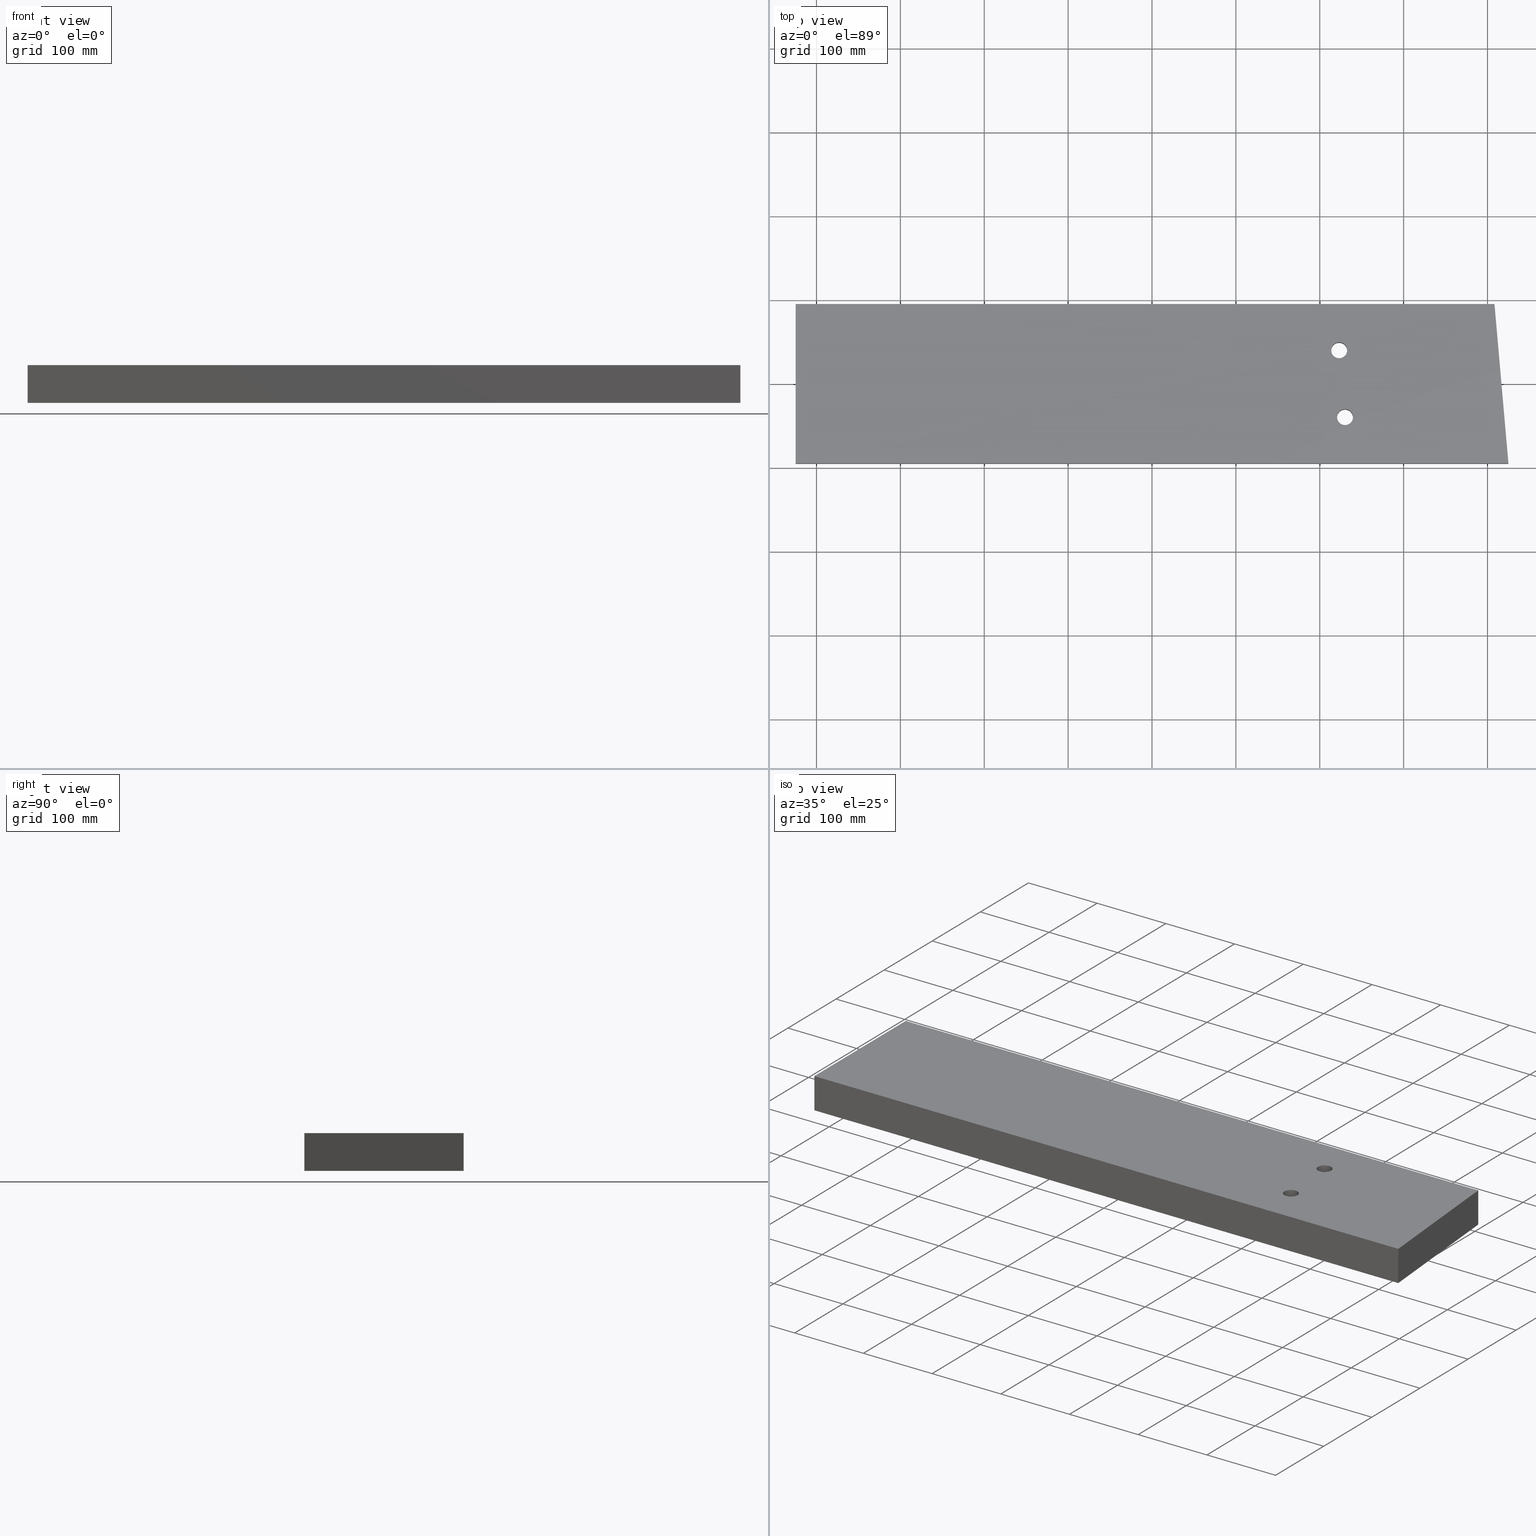
[diagram: canonical four-view strip — front | top / right | iso, engineering-drawing reading convention]
A machine part, canonical four-view strip (front | top / right | iso — engineering-drawing reading convention). The complete STEP part file that produces these views, byte-faithful:
ISO-10303-21;
HEADER;
FILE_DESCRIPTION (( 'STEP AP203' ),
    '1' );
FILE_NAME ('3982-58_REV_.step',
    '2026-01-19T05:56:40',
    ( '' ),
    ( '' ),
    'SwSTEP 2.0',
    'SolidWorks 2025',
    '' );
FILE_SCHEMA (( 'CONFIG_CONTROL_DESIGN' ));
ENDSEC;

DATA;
#1 = CARTESIAN_POINT ( 'NONE',  ( 408.3771539300757922, 94.99999999999997158, -22.50000000000037659 ) ) ;
#2 = AXIS2_PLACEMENT_3D ( 'NONE', #55, #242, #119 ) ;
#3 = APPROVAL_STATUS ( 'not_yet_approved' ) ;
#4 = DIRECTION ( 'NONE',  ( -1.000000000000000000, -5.843279076974508523E-16, 2.342651628260497432E-30 ) ) ;
#5 = ORIENTED_EDGE ( 'NONE', *, *, #66, .T. ) ;
#6 = PERSON_AND_ORGANIZATION ( #198, #112 ) ;
#7 = CARTESIAN_POINT ( 'NONE',  ( 239.6748066749439658, -39.84778792366971345, 22.49999999999999645 ) ) ;
#8 = AXIS2_PLACEMENT_3D ( 'NONE', #125, #254, #250 ) ;
#9 = ORIENTED_EDGE ( 'NONE', *, *, #372, .T. ) ;
#10 = APPROVAL_PERSON_ORGANIZATION ( #179, #293, #116 ) ;
#11 = VECTOR ( 'NONE', #289, 1000.000000000000000 ) ;
#12 = APPROVAL_STATUS ( 'not_yet_approved' ) ;
#13 = DIRECTION ( 'NONE',  ( -0.000000000000000000, -0.000000000000000000, 1.000000000000000000 ) ) ;
#14 = CARTESIAN_POINT ( 'NONE',  ( -425.0000000000000568, 94.99999999999998579, 22.49999999999963052 ) ) ;
#15 = ORIENTED_EDGE ( 'NONE', *, *, #105, .F. ) ;
#16 = DIRECTION ( 'NONE',  ( -5.843279076974508523E-16, 1.000000000000000000, -3.816391647148975608E-15 ) ) ;
#17 = CIRCLE ( 'NONE', #59, 9.499999999999980460 ) ;
#18 = EDGE_LOOP ( 'NONE', ( #127, #273, #123, #103 ) ) ;
#19 = CARTESIAN_POINT ( 'NONE',  ( -424.9999999999999432, -95.00000000000019895, -22.49999999999965539 ) ) ;
#20 =( LENGTH_UNIT ( ) NAMED_UNIT ( * ) SI_UNIT ( .MILLI., .METRE. ) );
#21 = APPLICATION_CONTEXT ( 'configuration controlled 3d designs of mechanical parts and assemblies' ) ;
#22 = DIRECTION ( 'NONE',  ( -0.000000000000000000, -4.009138700035287069E-15, -1.000000000000000000 ) ) ;
#23 = CIRCLE ( 'NONE', #326, 9.499999999999980460 ) ;
#24 = CARTESIAN_POINT ( 'NONE',  ( -424.9999999999999432, -95.00000000000019895, -22.49999999999965539 ) ) ;
#25 = PERSON_AND_ORGANIZATION ( #198, #112 ) ;
#26 =( NAMED_UNIT ( * ) PLANE_ANGLE_UNIT ( ) SI_UNIT ( $, .RADIAN. ) );
#27 = LINE ( 'NONE', #299, #275 ) ;
#28 = AXIS2_PLACEMENT_3D ( 'NONE', #332, #4, #205 ) ;
#29 = DIRECTION ( 'NONE',  ( -1.168432953743421931E-30, 3.816391647148975608E-15, 1.000000000000000000 ) ) ;
#30 = CC_DESIGN_PERSON_AND_ORGANIZATION_ASSIGNMENT ( #276, #65, ( #279 ) ) ;
#31 = ORIENTED_EDGE ( 'NONE', *, *, #356, .F. ) ;
#32 = ORIENTED_EDGE ( 'NONE', *, *, #372, .F. ) ;
#33 = APPROVAL_STATUS ( 'not_yet_approved' ) ;
#34 = CARTESIAN_POINT ( 'NONE',  ( 220.6748066749439943, -39.84778792366971345, -22.49999999999986500 ) ) ;
#35 = EDGE_CURVE ( 'NONE', #244, #178, #312, .T. ) ;
#36 = EDGE_LOOP ( 'NONE', ( #5, #189 ) ) ;
#37 = CALENDAR_DATE ( 2026, 19, 1 ) ;
#38 = AXIS2_PLACEMENT_3D ( 'NONE', #215, #85, #354 ) ;
#39 = CARTESIAN_POINT ( 'NONE',  ( 230.1748066749439658, -39.84778792366971345, -22.49999999999986500 ) ) ;
#40 = EDGE_LOOP ( 'NONE', ( #379, #246, #67, #148 ) ) ;
#41 = EDGE_CURVE ( 'NONE', #371, #152, #134, .T. ) ;
#42 = VERTEX_POINT ( 'NONE', #75 ) ;
#43 = DATE_TIME_ROLE ( 'creation_date' ) ;
#44 = CC_DESIGN_DATE_AND_TIME_ASSIGNMENT ( #82, #269, ( #174 ) ) ;
#45 = CARTESIAN_POINT ( 'NONE',  ( 223.2023472551318264, 39.84778792366994793, -22.50000000000017053 ) ) ;
#46 = AXIS2_PLACEMENT_3D ( 'NONE', #211, #359, #382 ) ;
#47 = DIRECTION ( 'NONE',  ( 0.000000000000000000, 4.009138700035287069E-15, 1.000000000000000000 ) ) ;
#48 = PLANE ( 'NONE',  #280 ) ;
#49 = EDGE_LOOP ( 'NONE', ( #308, #330, #316, #162 ) ) ;
#50 = DIRECTION ( 'NONE',  ( 0.000000000000000000, 1.000000000000000000, -3.816391647148975608E-15 ) ) ;
#51 = DIRECTION ( 'NONE',  ( -1.168432953743421931E-30, 3.816391647148975608E-15, 1.000000000000000000 ) ) ;
#52 = CARTESIAN_POINT ( 'NONE',  ( -424.9999999999999432, -95.00000000000019895, -22.49999999999965539 ) ) ;
#53 = PLANE ( 'NONE',  #28 ) ;
#54 = CARTESIAN_POINT ( 'NONE',  ( -425.0000000000000568, 94.99999999999980105, -22.50000000000038014 ) ) ;
#55 = CARTESIAN_POINT ( 'NONE',  ( 230.1748066749439658, -39.84778792366971345, 22.49999999999999645 ) ) ;
#56 = CARTESIAN_POINT ( 'NONE',  ( -424.9999999999999432, -95.00000000000001421, 22.50000000000035527 ) ) ;
#57 = DATE_AND_TIME ( #361, #166 ) ;
#58 = DIRECTION ( 'NONE',  ( 0.000000000000000000, -4.009138700035287069E-15, -1.000000000000000000 ) ) ;
#59 = AXIS2_PLACEMENT_3D ( 'NONE', #39, #154, #278 ) ;
#60 = CC_DESIGN_APPROVAL ( #293, ( #174 ) ) ;
#61 = ORIENTED_EDGE ( 'NONE', *, *, #180, .F. ) ;
#62 = EDGE_CURVE ( 'NONE', #251, #244, #165, .T. ) ;
#63 = FACE_OUTER_BOUND ( 'NONE', #40, .T. ) ;
#64 = ORIENTED_EDGE ( 'NONE', *, *, #218, .T. ) ;
#65 = PERSON_AND_ORGANIZATION_ROLE ( 'creator' ) ;
#66 = EDGE_CURVE ( 'NONE', #314, #371, #320, .T. ) ;
#67 = ORIENTED_EDGE ( 'NONE', *, *, #135, .T. ) ;
#68 = FACE_OUTER_BOUND ( 'NONE', #90, .T. ) ;
#69 = EDGE_LOOP ( 'NONE', ( #98, #340, #194, #213 ) ) ;
#70 = EDGE_CURVE ( 'NONE', #219, #366, #196, .T. ) ;
#71 = CARTESIAN_POINT ( 'NONE',  ( 408.3771539300757922, 94.99999999999997158, -22.50000000000037659 ) ) ;
#72 = VERTEX_POINT ( 'NONE', #261 ) ;
#73 = DIRECTION ( 'NONE',  ( 1.000000000000000000, 0.000000000000000000, 0.000000000000000000 ) ) ;
#74 = APPLICATION_CONTEXT ( 'configuration controlled 3d designs of mechanical parts and assemblies' ) ;
#75 = CARTESIAN_POINT ( 'NONE',  ( 425.0000000000000568, -94.99999999999974420, 22.50000000000035527 ) ) ;
#76 = DIRECTION ( 'NONE',  ( 1.000000000000000000, 0.000000000000000000, 0.000000000000000000 ) ) ;
#77 = ADVANCED_FACE ( 'NONE', ( #63 ), #53, .T. ) ;
#78 = AXIS2_PLACEMENT_3D ( 'NONE', #19, #346, #343 ) ;
#79 = CARTESIAN_POINT ( 'NONE',  ( 408.3771539300757922, 94.99999999999997158, -22.50000000000037659 ) ) ;
#80 = DIRECTION ( 'NONE',  ( 0.000000000000000000, -1.000000000000000000, 3.652049423109075124E-15 ) ) ;
#81 = LINE ( 'NONE', #234, #378 ) ;
#82 = DATE_AND_TIME ( #358, #204 ) ;
#83 = CC_DESIGN_PERSON_AND_ORGANIZATION_ASSIGNMENT ( #297, #327, ( #241 ) ) ;
#84 = PERSON_AND_ORGANIZATION_ROLE ( 'creator' ) ;
#85 = DIRECTION ( 'NONE',  ( -0.000000000000000000, -0.000000000000000000, 1.000000000000000000 ) ) ;
#86 = CYLINDRICAL_SURFACE ( 'NONE', #46, 9.499999999999980460 ) ;
#87 = EDGE_CURVE ( 'NONE', #244, #296, #177, .T. ) ;
#88 = ORIENTED_EDGE ( 'NONE', *, *, #87, .F. ) ;
#89 = DIRECTION ( 'NONE',  ( 3.061616997868382648E-16, -1.000000000000000000, 4.009138700035287069E-15 ) ) ;
#90 = EDGE_LOOP ( 'NONE', ( #221, #274, #364, #64 ) ) ;
#91 = PRODUCT_RELATED_PRODUCT_CATEGORY ( 'detail', '', ( #226 ) ) ;
#92 = COORDINATED_UNIVERSAL_TIME_OFFSET ( 10, 0, .AHEAD. ) ;
#93 = CALENDAR_DATE ( 2026, 19, 1 ) ;
#94 = VERTEX_POINT ( 'NONE', #34 ) ;
#95 = VECTOR ( 'NONE', #349, 1000.000000000000000 ) ;
#96 = ORIENTED_EDGE ( 'NONE', *, *, #172, .F. ) ;
#97 = DIRECTION ( 'NONE',  ( -0.000000000000000000, -0.000000000000000000, 1.000000000000000000 ) ) ;
#98 = ORIENTED_EDGE ( 'NONE', *, *, #176, .F. ) ;
#99 = EDGE_CURVE ( 'NONE', #72, #334, #184, .T. ) ;
#100 = CARTESIAN_POINT ( 'NONE',  ( 220.6748066749439943, -39.84778792366971345, 22.49999999999999645 ) ) ;
#101 = ORIENTED_EDGE ( 'NONE', *, *, #263, .F. ) ;
#102 = DIRECTION ( 'NONE',  ( -0.9961946980917461003, -0.08715574274765151841, 0.000000000000000000 ) ) ;
#103 = ORIENTED_EDGE ( 'NONE', *, *, #192, .F. ) ;
#104 = CARTESIAN_POINT ( 'NONE',  ( 223.2023472551318264, 39.84778792366994793, 22.49999999999999645 ) ) ;
#105 = EDGE_CURVE ( 'NONE', #178, #120, #147, .T. ) ;
#106 = DIRECTION ( 'NONE',  ( -0.000000000000000000, -0.000000000000000000, 1.000000000000000000 ) ) ;
#107 = LINE ( 'NONE', #284, #11 ) ;
#108 = EDGE_CURVE ( 'NONE', #94, #132, #110, .T. ) ;
#109 = FACE_OUTER_BOUND ( 'NONE', #224, .T. ) ;
#110 = CIRCLE ( 'NONE', #305, 9.499999999999980460 ) ;
#111 = PLANE ( 'NONE',  #151 ) ;
#112 = ORGANIZATION ( 'UNSPECIFIED', 'UNSPECIFIED', '' ) ;
#113 = SECURITY_CLASSIFICATION_LEVEL ( 'unclassified' ) ;
#114 = ADVANCED_FACE ( 'NONE', ( #268 ), #362, .F. ) ;
#115 = CARTESIAN_POINT ( 'NONE',  ( 223.2023472551318264, 39.84778792366994793, 22.49999999999999645 ) ) ;
#116 = APPROVAL_ROLE ( '' ) ;
#117 = DIRECTION ( 'NONE',  ( 1.000000000000000000, 3.061616997868382648E-16, -0.000000000000000000 ) ) ;
#118 = ORIENTED_EDGE ( 'NONE', *, *, #325, .F. ) ;
#119 = DIRECTION ( 'NONE',  ( 1.000000000000000000, 0.000000000000000000, 0.000000000000000000 ) ) ;
#120 = VERTEX_POINT ( 'NONE', #321 ) ;
#121 = VECTOR ( 'NONE', #22, 1000.000000000000000 ) ;
#122 = CIRCLE ( 'NONE', #8, 9.499999999999980460 ) ;
#123 = ORIENTED_EDGE ( 'NONE', *, *, #223, .T. ) ;
#124 = DATE_AND_TIME ( #93, #225 ) ;
#125 = CARTESIAN_POINT ( 'NONE',  ( 223.2023472551318264, 39.84778792366994793, 22.49999999999999645 ) ) ;
#126 = CARTESIAN_POINT ( 'NONE',  ( -424.9999999999999432, -95.00000000000001421, 22.50000000000035527 ) ) ;
#127 = ORIENTED_EDGE ( 'NONE', *, *, #108, .F. ) ;
#128 = AXIS2_PLACEMENT_3D ( 'NONE', #146, #351, #295 ) ;
#129 = ORIENTED_EDGE ( 'NONE', *, *, #87, .T. ) ;
#130 = ADVANCED_FACE ( 'NONE', ( #170 ), #290, .F. ) ;
#131 = CARTESIAN_POINT ( 'NONE',  ( 232.7023472551317980, 39.84778792366994793, 22.49999999999999645 ) ) ;
#132 = VERTEX_POINT ( 'NONE', #324 ) ;
#133 =( NAMED_UNIT ( * ) SI_UNIT ( $, .STERADIAN. ) SOLID_ANGLE_UNIT ( ) );
#134 = LINE ( 'NONE', #310, #95 ) ;
#135 = EDGE_CURVE ( 'NONE', #120, #251, #27, .T. ) ;
#136 = CARTESIAN_POINT ( 'NONE',  ( 232.7023472551317980, 39.84778792366994793, -22.50000000000017053 ) ) ;
#137 = APPROVAL ( #12, 'UNSPECIFIED' ) ;
#138 = FACE_OUTER_BOUND ( 'NONE', #191, .T. ) ;
#139 = PRODUCT_DEFINITION_SHAPE ( 'NONE', 'NONE',  #279 ) ;
#140 = DIRECTION ( 'NONE',  ( 0.000000000000000000, 4.009138700035287069E-15, 1.000000000000000000 ) ) ;
#141 = ADVANCED_FACE ( 'NONE', ( #245 ), #86, .F. ) ;
#142 = APPLICATION_PROTOCOL_DEFINITION ( 'international standard', 'config_control_design', 1994, #21 ) ;
#143 = DIRECTION ( 'NONE',  ( 1.000000000000000000, 3.061616997868382648E-16, -0.000000000000000000 ) ) ;
#144 = DESIGN_CONTEXT ( 'detailed design', #74, 'design' ) ;
#145 = VECTOR ( 'NONE', #161, 1000.000000000000000 ) ;
#146 = CARTESIAN_POINT ( 'NONE',  ( 230.1748066749439658, -39.84778792366971345, 22.49999999999999645 ) ) ;
#147 = LINE ( 'NONE', #272, #337 ) ;
#148 = ORIENTED_EDGE ( 'NONE', *, *, #62, .T. ) ;
#149 = ORIENTED_EDGE ( 'NONE', *, *, #298, .F. ) ;
#150 = DATE_AND_TIME ( #37, #322 ) ;
#151 = AXIS2_PLACEMENT_3D ( 'NONE', #52, #377, #228 ) ;
#152 = VERTEX_POINT ( 'NONE', #365 ) ;
#153 = CALENDAR_DATE ( 2026, 19, 1 ) ;
#154 = DIRECTION ( 'NONE',  ( -1.168432953743421931E-30, 3.816391647148975608E-15, 1.000000000000000000 ) ) ;
#155 = CARTESIAN_POINT ( 'NONE',  ( -425.0000000000000568, 94.99999999999980105, -22.50000000000038014 ) ) ;
#156 = PERSON_AND_ORGANIZATION ( #198, #112 ) ;
#157 = CLOSED_SHELL ( 'NONE', ( #114, #130, #163, #288, #257, #347, #77, #267, #141, #252 ) ) ;
#158 = ORIENTED_EDGE ( 'NONE', *, *, #35, .F. ) ;
#159 = LINE ( 'NONE', #131, #266 ) ;
#160 = EDGE_LOOP ( 'NONE', ( #197, #256, #118, #15 ) ) ;
#161 = DIRECTION ( 'NONE',  ( 1.000000000000000000, 3.061616997868382648E-16, -0.000000000000000000 ) ) ;
#162 = ORIENTED_EDGE ( 'NONE', *, *, #70, .T. ) ;
#163 = ADVANCED_FACE ( 'NONE', ( #109 ), #182, .F. ) ;
#164 = LINE ( 'NONE', #199, #281 ) ;
#165 = LINE ( 'NONE', #318, #173 ) ;
#166 = LOCAL_TIME ( 16, 56, 40.00000000000000000, #329 ) ;
#167 =( GEOMETRIC_REPRESENTATION_CONTEXT ( 3 ) GLOBAL_UNCERTAINTY_ASSIGNED_CONTEXT ( ( #212 ) ) GLOBAL_UNIT_ASSIGNED_CONTEXT ( ( #20, #26, #133 ) ) REPRESENTATION_CONTEXT ( 'NONE', 'WORKASPACE' ) );
#168 = PLANE ( 'NONE',  #78 ) ;
#169 = APPROVAL_PERSON_ORGANIZATION ( #156, #137, #311 ) ;
#170 = FACE_OUTER_BOUND ( 'NONE', #18, .T. ) ;
#171 = LINE ( 'NONE', #71, #258 ) ;
#172 = EDGE_CURVE ( 'NONE', #152, #259, #208, .T. ) ;
#173 = VECTOR ( 'NONE', #16, 1000.000000000000000 ) ;
#174 = SECURITY_CLASSIFICATION ( '', '', #113 ) ;
#175 = CARTESIAN_POINT ( 'NONE',  ( -425.0000000000000568, 94.99999999999980105, -22.50000000000038014 ) ) ;
#176 = EDGE_CURVE ( 'NONE', #371, #314, #331, .T. ) ;
#177 = LINE ( 'NONE', #264, #214 ) ;
#178 = VERTEX_POINT ( 'NONE', #175 ) ;
#179 = PERSON_AND_ORGANIZATION ( #198, #112 ) ;
#180 = EDGE_CURVE ( 'NONE', #251, #42, #294, .T. ) ;
#181 = AXIS2_PLACEMENT_3D ( 'NONE', #235, #89, #58 ) ;
#182 = PLANE ( 'NONE',  #181 ) ;
#183 = DATE_AND_TIME ( #153, #270 ) ;
#184 = LINE ( 'NONE', #1, #341 ) ;
#185 = ORIENTED_EDGE ( 'NONE', *, *, #223, .F. ) ;
#186 = APPROVAL_ROLE ( '' ) ;
#187 = DIRECTION ( 'NONE',  ( 0.000000000000000000, 0.000000000000000000, 1.000000000000000000 ) ) ;
#188 = AXIS2_PLACEMENT_3D ( 'NONE', #104, #232, #73 ) ;
#189 = ORIENTED_EDGE ( 'NONE', *, *, #176, .T. ) ;
#190 = MECHANICAL_CONTEXT ( 'NONE', #21, 'mechanical' ) ;
#191 = EDGE_LOOP ( 'NONE', ( #9, #61, #339, #271 ) ) ;
#192 = EDGE_CURVE ( 'NONE', #132, #219, #328, .T. ) ;
#193 = APPLICATION_PROTOCOL_DEFINITION ( 'international standard', 'config_control_design', 1994, #74 ) ;
#194 = ORIENTED_EDGE ( 'NONE', *, *, #172, .T. ) ;
#195 = CC_DESIGN_PERSON_AND_ORGANIZATION_ASSIGNMENT ( #25, #84, ( #241 ) ) ;
#196 = CIRCLE ( 'NONE', #128, 9.499999999999980460 ) ;
#197 = ORIENTED_EDGE ( 'NONE', *, *, #298, .T. ) ;
#198 = PERSON ( 'UNSPECIFIED', 'UNSPECIFIED', 'UNSPECIFIED', ('UNSPECIFIED'), ('UNSPECIFIED'), ('UNSPECIFIED') ) ;
#199 = CARTESIAN_POINT ( 'NONE',  ( 425.0000000000000568, -94.99999999999992895, -22.49999999999965539 ) ) ;
#200 = FACE_BOUND ( 'NONE', #369, .T. ) ;
#201 = CARTESIAN_POINT ( 'NONE',  ( 213.7023472551318548, 39.84778792366994793, -22.50000000000017053 ) ) ;
#202 = DIRECTION ( 'NONE',  ( 0.08715574274765151841, -0.9961946980917461003, 0.000000000000000000 ) ) ;
#203 = AXIS2_PLACEMENT_3D ( 'NONE', #319, #383, #50 ) ;
#204 = LOCAL_TIME ( 16, 56, 40.00000000000000000, #207 ) ;
#205 = DIRECTION ( 'NONE',  ( 5.843279076974508523E-16, -1.000000000000000000, 0.000000000000000000 ) ) ;
#206 = FACE_BOUND ( 'NONE', #36, .T. ) ;
#207 = COORDINATED_UNIVERSAL_TIME_OFFSET ( 10, 0, .AHEAD. ) ;
#208 = CIRCLE ( 'NONE', #38, 9.499999999999980460 ) ;
#209 = CARTESIAN_POINT ( 'NONE',  ( 223.2023472551318264, 39.84778792366994793, -22.50000000000017053 ) ) ;
#210 = ORIENTED_EDGE ( 'NONE', *, *, #218, .F. ) ;
#211 = CARTESIAN_POINT ( 'NONE',  ( 230.1748066749439658, -39.84778792366971345, 22.49999999999999645 ) ) ;
#212 = UNCERTAINTY_MEASURE_WITH_UNIT (LENGTH_MEASURE( 1.000000000000000082E-05 ), #20, 'distance_accuracy_value', 'NONE');
#213 = ORIENTED_EDGE ( 'NONE', *, *, #384, .F. ) ;
#214 = VECTOR ( 'NONE', #117, 1000.000000000000000 ) ;
#215 = CARTESIAN_POINT ( 'NONE',  ( 223.2023472551318264, 39.84778792366994793, 22.49999999999999645 ) ) ;
#216 = CC_DESIGN_SECURITY_CLASSIFICATION ( #174, ( #241 ) ) ;
#217 = APPROVAL_DATE_TIME ( #124, #137 ) ;
#218 = EDGE_CURVE ( 'NONE', #259, #152, #122, .T. ) ;
#219 = VERTEX_POINT ( 'NONE', #220 ) ;
#220 = CARTESIAN_POINT ( 'NONE',  ( 239.6748066749439658, -39.84778792366971345, 22.49999999999999645 ) ) ;
#221 = ORIENTED_EDGE ( 'NONE', *, *, #41, .F. ) ;
#222 = MANIFOLD_SOLID_BREP ( 'M16 Clearance Hole1', #157 ) ;
#223 = EDGE_CURVE ( 'NONE', #366, #219, #23, .T. ) ;
#224 = EDGE_LOOP ( 'NONE', ( #129, #101, #149, #158 ) ) ;
#225 = LOCAL_TIME ( 16, 56, 40.00000000000000000, #92 ) ;
#226 = PRODUCT ( '3982-58_REV_', '3982-58_REV_', '', ( #190 ) ) ;
#227 = APPROVAL ( #33, 'UNSPECIFIED' ) ;
#228 = DIRECTION ( 'NONE',  ( 0.000000000000000000, 4.009138700035287069E-15, 1.000000000000000000 ) ) ;
#229 = ORIENTED_EDGE ( 'NONE', *, *, #263, .T. ) ;
#230 = CC_DESIGN_PERSON_AND_ORGANIZATION_ASSIGNMENT ( #239, #238, ( #174 ) ) ;
#231 = DIRECTION ( 'NONE',  ( 0.08715574274765151841, -0.9961946980917461003, 0.000000000000000000 ) ) ;
#232 = DIRECTION ( 'NONE',  ( -0.000000000000000000, -0.000000000000000000, 1.000000000000000000 ) ) ;
#233 = CARTESIAN_POINT ( 'NONE',  ( 230.1748066749439658, -39.84778792366971345, -22.49999999999986500 ) ) ;
#234 = CARTESIAN_POINT ( 'NONE',  ( 220.6748066749439943, -39.84778792366971345, 22.49999999999999645 ) ) ;
#235 = CARTESIAN_POINT ( 'NONE',  ( -425.0000000000000568, 94.99999999999980105, -22.50000000000038014 ) ) ;
#236 = LINE ( 'NONE', #54, #240 ) ;
#237 = EDGE_CURVE ( 'NONE', #132, #94, #17, .T. ) ;
#238 = PERSON_AND_ORGANIZATION_ROLE ( 'classification_officer' ) ;
#239 = PERSON_AND_ORGANIZATION ( #198, #112 ) ;
#240 = VECTOR ( 'NONE', #323, 1000.000000000000000 ) ;
#241 = PRODUCT_DEFINITION_FORMATION_WITH_SPECIFIED_SOURCE ( 'ANY', '', #226, .NOT_KNOWN. ) ;
#242 = DIRECTION ( 'NONE',  ( -0.000000000000000000, -0.000000000000000000, 1.000000000000000000 ) ) ;
#243 = DIRECTION ( 'NONE',  ( -1.168432953743421931E-30, 3.816391647148975608E-15, 1.000000000000000000 ) ) ;
#244 = VERTEX_POINT ( 'NONE', #14 ) ;
#245 = FACE_OUTER_BOUND ( 'NONE', #49, .T. ) ;
#246 = ORIENTED_EDGE ( 'NONE', *, *, #105, .T. ) ;
#247 = AXIS2_PLACEMENT_3D ( 'NONE', #209, #29, #80 ) ;
#248 = AXIS2_PLACEMENT_3D ( 'NONE', #367, #187, #338 ) ;
#249 = PERSON_AND_ORGANIZATION ( #198, #112 ) ;
#250 = DIRECTION ( 'NONE',  ( 1.000000000000000000, 0.000000000000000000, 0.000000000000000000 ) ) ;
#251 = VERTEX_POINT ( 'NONE', #126 ) ;
#252 = ADVANCED_FACE ( 'NONE', ( #68 ), #370, .F. ) ;
#253 = ORIENTED_EDGE ( 'NONE', *, *, #237, .T. ) ;
#254 = DIRECTION ( 'NONE',  ( -0.000000000000000000, -0.000000000000000000, 1.000000000000000000 ) ) ;
#255 = CARTESIAN_POINT ( 'NONE',  ( 425.0000000000000568, -94.99999999999974420, -22.50000000000037659 ) ) ;
#256 = ORIENTED_EDGE ( 'NONE', *, *, #99, .T. ) ;
#257 = ADVANCED_FACE ( 'NONE', ( #138 ), #111, .F. ) ;
#258 = VECTOR ( 'NONE', #317, 1000.000000000000000 ) ;
#259 = VERTEX_POINT ( 'NONE', #355 ) ;
#260 = DIRECTION ( 'NONE',  ( -0.000000000000000000, -0.000000000000000000, 1.000000000000000000 ) ) ;
#261 = CARTESIAN_POINT ( 'NONE',  ( 408.3771539300757922, 94.99999999999997158, -22.50000000000037659 ) ) ;
#262 = FACE_OUTER_BOUND ( 'NONE', #300, .T. ) ;
#263 = EDGE_CURVE ( 'NONE', #72, #296, #171, .T. ) ;
#264 = CARTESIAN_POINT ( 'NONE',  ( -425.0000000000000568, 94.99999999999998579, 22.49999999999963052 ) ) ;
#265 = CC_DESIGN_APPROVAL ( #227, ( #241 ) ) ;
#266 = VECTOR ( 'NONE', #260, 1000.000000000000000 ) ;
#267 = ADVANCED_FACE ( 'NONE', ( #352 ), #48, .F. ) ;
#268 = FACE_OUTER_BOUND ( 'NONE', #69, .T. ) ;
#269 = DATE_TIME_ROLE ( 'classification_date' ) ;
#270 = LOCAL_TIME ( 16, 56, 40.00000000000000000, #368 ) ;
#271 = ORIENTED_EDGE ( 'NONE', *, *, #325, .T. ) ;
#272 = CARTESIAN_POINT ( 'NONE',  ( -424.9999999999999432, -95.00000000000019895, -22.49999999999965539 ) ) ;
#273 = ORIENTED_EDGE ( 'NONE', *, *, #360, .T. ) ;
#274 = ORIENTED_EDGE ( 'NONE', *, *, #66, .F. ) ;
#275 = VECTOR ( 'NONE', #140, 1000.000000000000000 ) ;
#276 = PERSON_AND_ORGANIZATION ( #198, #112 ) ;
#277 = APPROVAL_DATE_TIME ( #150, #227 ) ;
#278 = DIRECTION ( 'NONE',  ( 0.000000000000000000, -1.000000000000000000, 3.652049423109075124E-15 ) ) ;
#279 = PRODUCT_DEFINITION ( 'UNKNOWN', '', #241, #144 ) ;
#280 = AXIS2_PLACEMENT_3D ( 'NONE', #79, #102, #231 ) ;
#281 = VECTOR ( 'NONE', #47, 1000.000000000000000 ) ;
#282 = CARTESIAN_POINT ( 'NONE',  ( 408.3771539300757922, 94.99999999999997158, 22.49999999999999645 ) ) ;
#283 = ORIENTED_EDGE ( 'NONE', *, *, #62, .F. ) ;
#284 = CARTESIAN_POINT ( 'NONE',  ( 408.3771539300757922, 94.99999999999997158, 22.49999999999999645 ) ) ;
#285 = ORIENTED_EDGE ( 'NONE', *, *, #99, .F. ) ;
#286 = LINE ( 'NONE', #24, #145 ) ;
#287 = DIRECTION ( 'NONE',  ( 0.000000000000000000, -1.000000000000000000, 3.652049423109075124E-15 ) ) ;
#288 = ADVANCED_FACE ( 'NONE', ( #206, #200, #315 ), #168, .F. ) ;
#289 = DIRECTION ( 'NONE',  ( 0.08715574274765151841, -0.9961946980917461003, 0.000000000000000000 ) ) ;
#290 = CYLINDRICAL_SURFACE ( 'NONE', #2, 9.499999999999980460 ) ;
#291 = FACE_BOUND ( 'NONE', #345, .T. ) ;
#292 = AXIS2_PLACEMENT_3D ( 'NONE', #115, #106, #76 ) ;
#293 = APPROVAL ( #3, 'UNSPECIFIED' ) ;
#294 = LINE ( 'NONE', #56, #353 ) ;
#295 = DIRECTION ( 'NONE',  ( 1.000000000000000000, 0.000000000000000000, 0.000000000000000000 ) ) ;
#296 = VERTEX_POINT ( 'NONE', #282 ) ;
#297 = PERSON_AND_ORGANIZATION ( #198, #112 ) ;
#298 = EDGE_CURVE ( 'NONE', #178, #72, #236, .T. ) ;
#299 = CARTESIAN_POINT ( 'NONE',  ( -424.9999999999999432, -95.00000000000019895, -22.49999999999965539 ) ) ;
#300 = EDGE_LOOP ( 'NONE', ( #336, #31, #88, #283 ) ) ;
#301 = DIRECTION ( 'NONE',  ( 5.843279076974508523E-16, -1.000000000000000000, 3.816391647148975608E-15 ) ) ;
#302 = EDGE_LOOP ( 'NONE', ( #373, #185 ) ) ;
#303 = COORDINATED_UNIVERSAL_TIME_OFFSET ( 10, 0, .AHEAD. ) ;
#304 = ORIENTED_EDGE ( 'NONE', *, *, #356, .T. ) ;
#305 = AXIS2_PLACEMENT_3D ( 'NONE', #233, #243, #380 ) ;
#306 = DIRECTION ( 'NONE',  ( 1.000000000000000000, 0.000000000000000000, 0.000000000000000000 ) ) ;
#307 = CC_DESIGN_APPROVAL ( #137, ( #279 ) ) ;
#308 = ORIENTED_EDGE ( 'NONE', *, *, #360, .F. ) ;
#309 = PERSON_AND_ORGANIZATION_ROLE ( 'design_owner' ) ;
#310 = CARTESIAN_POINT ( 'NONE',  ( 213.7023472551318548, 39.84778792366994793, 22.49999999999999645 ) ) ;
#311 = APPROVAL_ROLE ( '' ) ;
#312 = LINE ( 'NONE', #155, #121 ) ;
#313 = AXIS2_PLACEMENT_3D ( 'NONE', #45, #51, #287 ) ;
#314 = VERTEX_POINT ( 'NONE', #136 ) ;
#315 = FACE_OUTER_BOUND ( 'NONE', #160, .T. ) ;
#316 = ORIENTED_EDGE ( 'NONE', *, *, #192, .T. ) ;
#317 = DIRECTION ( 'NONE',  ( -0.000000000000000000, -0.000000000000000000, 1.000000000000000000 ) ) ;
#318 = CARTESIAN_POINT ( 'NONE',  ( -424.9999999999999432, -95.00000000000001421, 22.50000000000035527 ) ) ;
#319 = CARTESIAN_POINT ( 'NONE',  ( -424.9999999999999432, -95.00000000000001421, 22.50000000000035527 ) ) ;
#320 = CIRCLE ( 'NONE', #313, 9.499999999999980460 ) ;
#321 = CARTESIAN_POINT ( 'NONE',  ( -424.9999999999999432, -95.00000000000019895, -22.49999999999965539 ) ) ;
#322 = LOCAL_TIME ( 16, 56, 40.00000000000000000, #303 ) ;
#323 = DIRECTION ( 'NONE',  ( 1.000000000000000000, 3.061616997868382648E-16, -0.000000000000000000 ) ) ;
#324 = CARTESIAN_POINT ( 'NONE',  ( 239.6748066749439658, -39.84778792366971345, -22.49999999999986500 ) ) ;
#325 = EDGE_CURVE ( 'NONE', #120, #334, #286, .T. ) ;
#326 = AXIS2_PLACEMENT_3D ( 'NONE', #335, #97, #306 ) ;
#327 = PERSON_AND_ORGANIZATION_ROLE ( 'design_supplier' ) ;
#328 = LINE ( 'NONE', #7, #376 ) ;
#329 = COORDINATED_UNIVERSAL_TIME_OFFSET ( 10, 0, .AHEAD. ) ;
#330 = ORIENTED_EDGE ( 'NONE', *, *, #237, .F. ) ;
#331 = CIRCLE ( 'NONE', #247, 9.499999999999980460 ) ;
#332 = CARTESIAN_POINT ( 'NONE',  ( -425.0000000000000000, -1.189808404739593339E-14, -9.956269420107112469E-28 ) ) ;
#333 = EDGE_LOOP ( 'NONE', ( #304, #32, #285, #229 ) ) ;
#334 = VERTEX_POINT ( 'NONE', #255 ) ;
#335 = CARTESIAN_POINT ( 'NONE',  ( 230.1748066749439658, -39.84778792366971345, 22.49999999999999645 ) ) ;
#336 = ORIENTED_EDGE ( 'NONE', *, *, #180, .T. ) ;
#337 = VECTOR ( 'NONE', #301, 1000.000000000000000 ) ;
#338 = DIRECTION ( 'NONE',  ( 1.000000000000000000, 0.000000000000000000, 0.000000000000000000 ) ) ;
#339 = ORIENTED_EDGE ( 'NONE', *, *, #135, .F. ) ;
#340 = ORIENTED_EDGE ( 'NONE', *, *, #41, .T. ) ;
#341 = VECTOR ( 'NONE', #202, 1000.000000000000000 ) ;
#342 = SHAPE_DEFINITION_REPRESENTATION ( #139, #357 ) ;
#343 = DIRECTION ( 'NONE',  ( 0.000000000000000000, -1.000000000000000000, 3.816391647148975608E-15 ) ) ;
#344 = APPROVAL_PERSON_ORGANIZATION ( #249, #227, #186 ) ;
#345 = EDGE_LOOP ( 'NONE', ( #210, #96 ) ) ;
#346 = DIRECTION ( 'NONE',  ( -1.168432953743421931E-30, 3.816391647148975608E-15, 1.000000000000000000 ) ) ;
#347 = ADVANCED_FACE ( 'NONE', ( #291, #350, #262 ), #381, .F. ) ;
#348 = APPROVAL_DATE_TIME ( #57, #293 ) ;
#349 = DIRECTION ( 'NONE',  ( -0.000000000000000000, -0.000000000000000000, 1.000000000000000000 ) ) ;
#350 = FACE_BOUND ( 'NONE', #302, .T. ) ;
#351 = DIRECTION ( 'NONE',  ( -0.000000000000000000, -0.000000000000000000, 1.000000000000000000 ) ) ;
#352 = FACE_OUTER_BOUND ( 'NONE', #333, .T. ) ;
#353 = VECTOR ( 'NONE', #143, 1000.000000000000000 ) ;
#354 = DIRECTION ( 'NONE',  ( 1.000000000000000000, 0.000000000000000000, 0.000000000000000000 ) ) ;
#355 = CARTESIAN_POINT ( 'NONE',  ( 232.7023472551317980, 39.84778792366994793, 22.49999999999999645 ) ) ;
#356 = EDGE_CURVE ( 'NONE', #296, #42, #107, .T. ) ;
#357 = ADVANCED_BREP_SHAPE_REPRESENTATION ( '3982-58_REV_', ( #222, #248 ), #167 ) ;
#358 = CALENDAR_DATE ( 2026, 19, 1 ) ;
#359 = DIRECTION ( 'NONE',  ( -0.000000000000000000, -0.000000000000000000, 1.000000000000000000 ) ) ;
#360 = EDGE_CURVE ( 'NONE', #94, #366, #81, .T. ) ;
#361 = CALENDAR_DATE ( 2026, 19, 1 ) ;
#362 = CYLINDRICAL_SURFACE ( 'NONE', #292, 9.499999999999980460 ) ;
#363 = CC_DESIGN_DATE_AND_TIME_ASSIGNMENT ( #183, #43, ( #279 ) ) ;
#364 = ORIENTED_EDGE ( 'NONE', *, *, #384, .T. ) ;
#365 = CARTESIAN_POINT ( 'NONE',  ( 213.7023472551318548, 39.84778792366994793, 22.49999999999999645 ) ) ;
#366 = VERTEX_POINT ( 'NONE', #100 ) ;
#367 = CARTESIAN_POINT ( 'NONE',  ( 0.000000000000000000, 0.000000000000000000, 0.000000000000000000 ) ) ;
#368 = COORDINATED_UNIVERSAL_TIME_OFFSET ( 10, 0, .AHEAD. ) ;
#369 = EDGE_LOOP ( 'NONE', ( #253, #375 ) ) ;
#370 = CYLINDRICAL_SURFACE ( 'NONE', #188, 9.499999999999980460 ) ;
#371 = VERTEX_POINT ( 'NONE', #201 ) ;
#372 = EDGE_CURVE ( 'NONE', #334, #42, #164, .T. ) ;
#373 = ORIENTED_EDGE ( 'NONE', *, *, #70, .F. ) ;
#374 = DIRECTION ( 'NONE',  ( -0.000000000000000000, -0.000000000000000000, 1.000000000000000000 ) ) ;
#375 = ORIENTED_EDGE ( 'NONE', *, *, #108, .T. ) ;
#376 = VECTOR ( 'NONE', #13, 1000.000000000000000 ) ;
#377 = DIRECTION ( 'NONE',  ( -3.061616997868382648E-16, 1.000000000000000000, -4.009138700035287069E-15 ) ) ;
#378 = VECTOR ( 'NONE', #374, 1000.000000000000000 ) ;
#379 = ORIENTED_EDGE ( 'NONE', *, *, #35, .T. ) ;
#380 = DIRECTION ( 'NONE',  ( 0.000000000000000000, -1.000000000000000000, 3.652049423109075124E-15 ) ) ;
#381 = PLANE ( 'NONE',  #203 ) ;
#382 = DIRECTION ( 'NONE',  ( 1.000000000000000000, 0.000000000000000000, 0.000000000000000000 ) ) ;
#383 = DIRECTION ( 'NONE',  ( 1.168432953743421931E-30, -3.816391647148975608E-15, -1.000000000000000000 ) ) ;
#384 = EDGE_CURVE ( 'NONE', #314, #259, #159, .T. ) ;
#385 = CC_DESIGN_PERSON_AND_ORGANIZATION_ASSIGNMENT ( #6, #309, ( #226 ) ) ;
ENDSEC;
END-ISO-10303-21;
